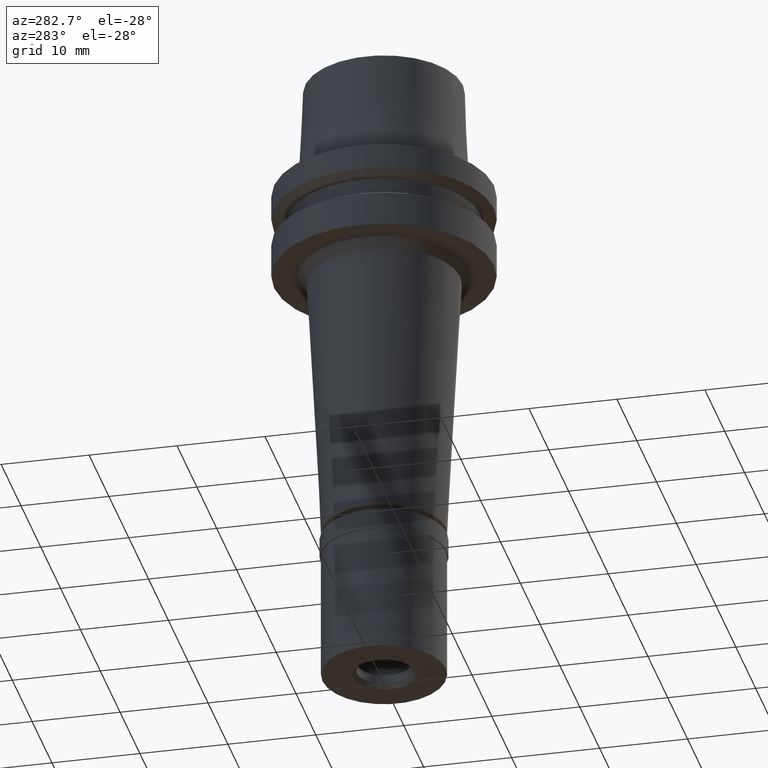
[diagram: clean part render]
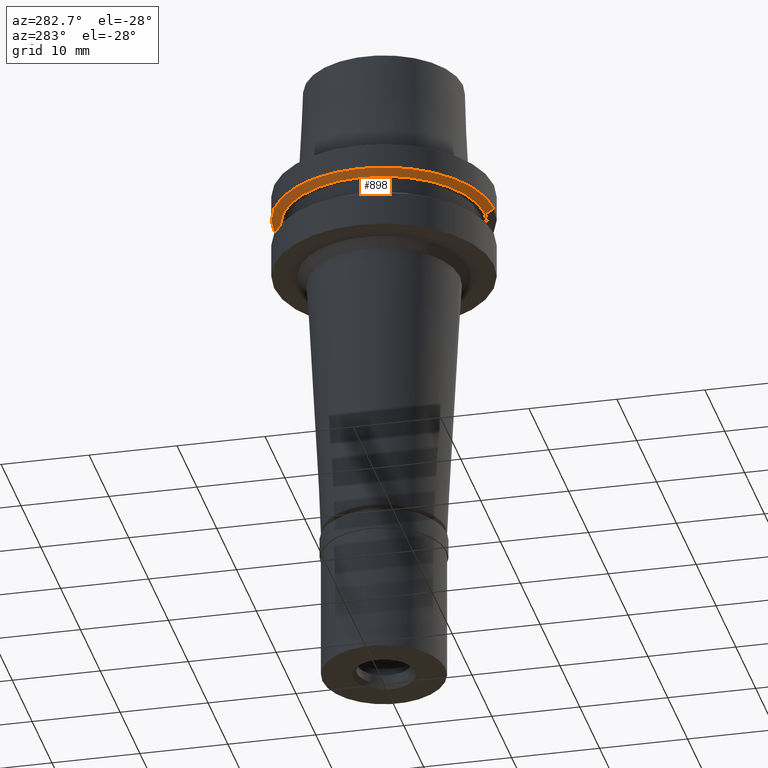
[diagram: same view with one face highlighted and labeled with its STEP entity id]
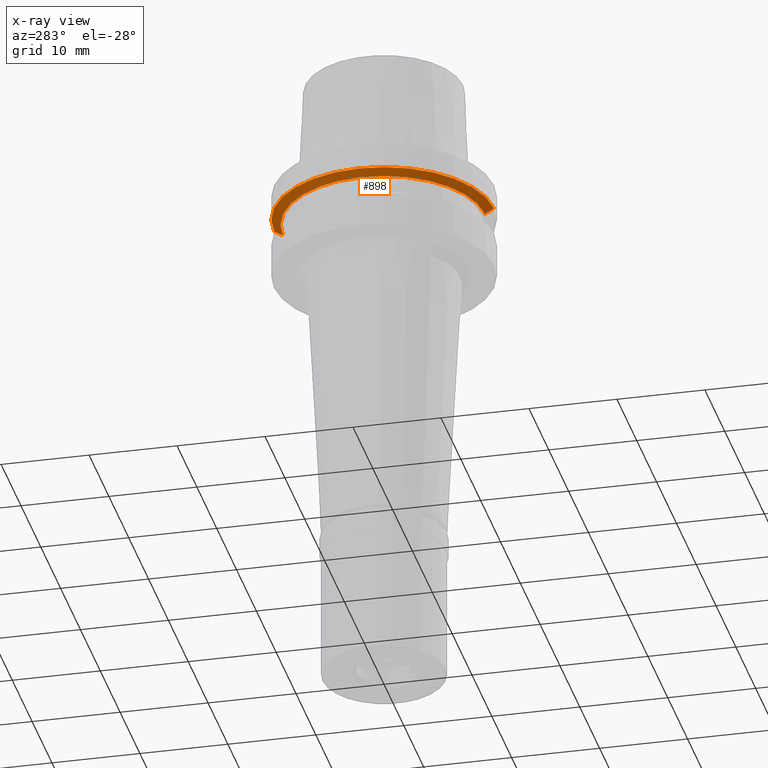
[diagram: x-ray of the same camera — body ghosted, the highlighted face saturated]
A machine part, auxiliary view. The second image highlights one B-rep face of the part: STEP entity #898.
The next image is the same camera in x-ray: the body ghosted, the highlighted face saturated — about 0% of this face is hidden behind the body in this view.
In plain terms, the highlighted conical surface has half-angle 60 deg.
Its self-contained STEP definition (entity closure, byte-faithful):
#27 = EDGE_LOOP ( 'NONE', ( #984, #2632, #981, #1315 ) ) ;
#85 = EDGE_CURVE ( 'NONE', #794, #2648, #721, .T. ) ;
#113 = VECTOR ( 'NONE', #2407, 1000.000000000000114 ) ;
#243 = DIRECTION ( 'NONE',  ( 0.0000000000000000000, 0.8660254037846089048, -0.4999999999997049027 ) ) ;
#336 = CARTESIAN_POINT ( 'NONE',  ( 0.0000000000000000000, -11.48205080757000118, -3.499999999997000177 ) ) ;
#364 = CONICAL_SURFACE ( 'NONE', #2586, 11.99102540378000192, 1.047197551196400456 ) ;
#456 = CIRCLE ( 'NONE', #2332, 11.48205080757000118 ) ;
#478 = DIRECTION ( 'NONE',  ( 0.0000000000000000000, 1.000000000000000000, 0.0000000000000000000 ) ) ;
#721 = LINE ( 'NONE', #1566, #113 ) ;
#759 = DIRECTION ( 'NONE',  ( 0.0000000000000000000, 1.000000000000000000, 0.0000000000000000000 ) ) ;
#794 = VERTEX_POINT ( 'NONE', #2617 ) ;
#824 = CARTESIAN_POINT ( 'NONE',  ( 0.0000000000000000000, 0.0000000000000000000, -3.206143379862000042 ) ) ;
#859 = VERTEX_POINT ( 'NONE', #336 ) ;
#860 = FACE_OUTER_BOUND ( 'NONE', #27, .T. ) ;
#888 = AXIS2_PLACEMENT_3D ( 'NONE', #1783, #2000, #759 ) ;
#898 = ADVANCED_FACE ( 'NONE', ( #860 ), #364, .T. ) ;
#918 = DIRECTION ( 'NONE',  ( 0.0000000000000000000, 0.0000000000000000000, 1.000000000000000000 ) ) ;
#981 = ORIENTED_EDGE ( 'NONE', *, *, #1880, .F. ) ;
#984 = ORIENTED_EDGE ( 'NONE', *, *, #1824, .T. ) ;
#1315 = ORIENTED_EDGE ( 'NONE', *, *, #85, .T. ) ;
#1455 = DIRECTION ( 'NONE',  ( 0.0000000000000000000, 1.000000000000000000, 0.0000000000000000000 ) ) ;
#1506 = EDGE_CURVE ( 'NONE', #1651, #859, #2067, .T. ) ;
#1514 = CARTESIAN_POINT ( 'NONE',  ( 0.0000000000000000000, 0.0000000000000000000, -3.499999999997000177 ) ) ;
#1566 = CARTESIAN_POINT ( 'NONE',  ( 0.0000000000000000000, 12.50000000000000000, -2.912286759727999996 ) ) ;
#1651 = VERTEX_POINT ( 'NONE', #2116 ) ;
#1783 = CARTESIAN_POINT ( 'NONE',  ( 0.0000000000000000000, 0.0000000000000000000, -2.912286759726999907 ) ) ;
#1824 = EDGE_CURVE ( 'NONE', #2648, #859, #456, .T. ) ;
#1863 = DIRECTION ( 'NONE',  ( 0.0000000000000000000, 0.0000000000000000000, 1.000000000000000000 ) ) ;
#1880 = EDGE_CURVE ( 'NONE', #794, #1651, #2072, .T. ) ;
#1892 = CARTESIAN_POINT ( 'NONE',  ( 0.0000000000000000000, -12.50000000000000000, -2.912286759727999996 ) ) ;
#2000 = DIRECTION ( 'NONE',  ( 0.0000000000000000000, 0.0000000000000000000, 1.000000000000000000 ) ) ;
#2035 = VECTOR ( 'NONE', #243, 1000.000000000000114 ) ;
#2067 = LINE ( 'NONE', #1892, #2035 ) ;
#2072 = CIRCLE ( 'NONE', #888, 12.50000000000000000 ) ;
#2116 = CARTESIAN_POINT ( 'NONE',  ( 0.0000000000000000000, -12.50000000000000000, -2.912286759727999996 ) ) ;
#2248 = CARTESIAN_POINT ( 'NONE',  ( 0.0000000000000000000, 11.48205080757000118, -3.499999999997999822 ) ) ;
#2332 = AXIS2_PLACEMENT_3D ( 'NONE', #1514, #918, #478 ) ;
#2407 = DIRECTION ( 'NONE',  ( 0.0000000000000000000, -0.8660254037846089048, -0.4999999999997049027 ) ) ;
#2586 = AXIS2_PLACEMENT_3D ( 'NONE', #824, #1863, #1455 ) ;
#2617 = CARTESIAN_POINT ( 'NONE',  ( 0.0000000000000000000, 12.50000000000000000, -2.912286759727999996 ) ) ;
#2632 = ORIENTED_EDGE ( 'NONE', *, *, #1506, .F. ) ;
#2648 = VERTEX_POINT ( 'NONE', #2248 ) ;